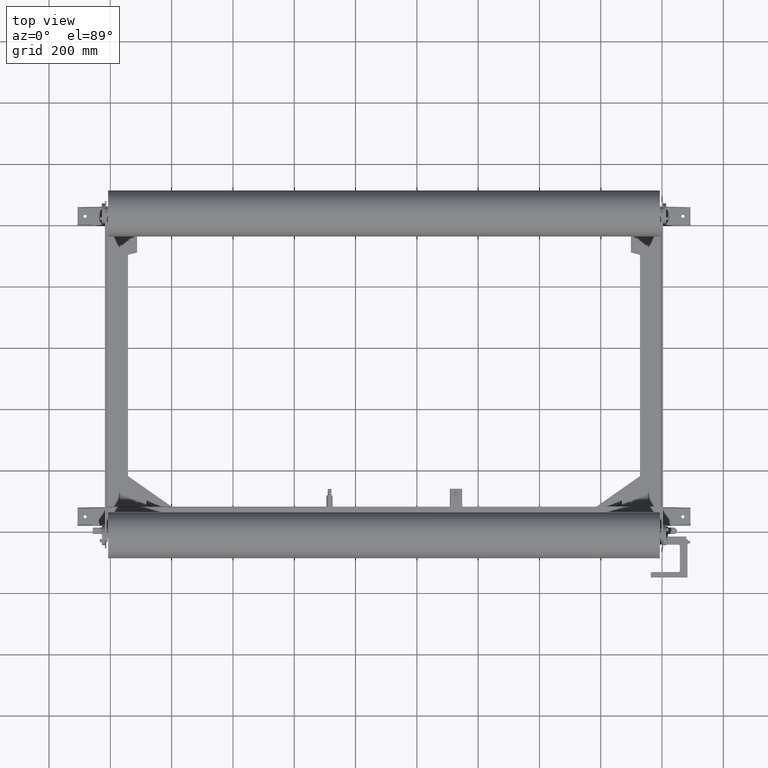
[diagram: clean part render]
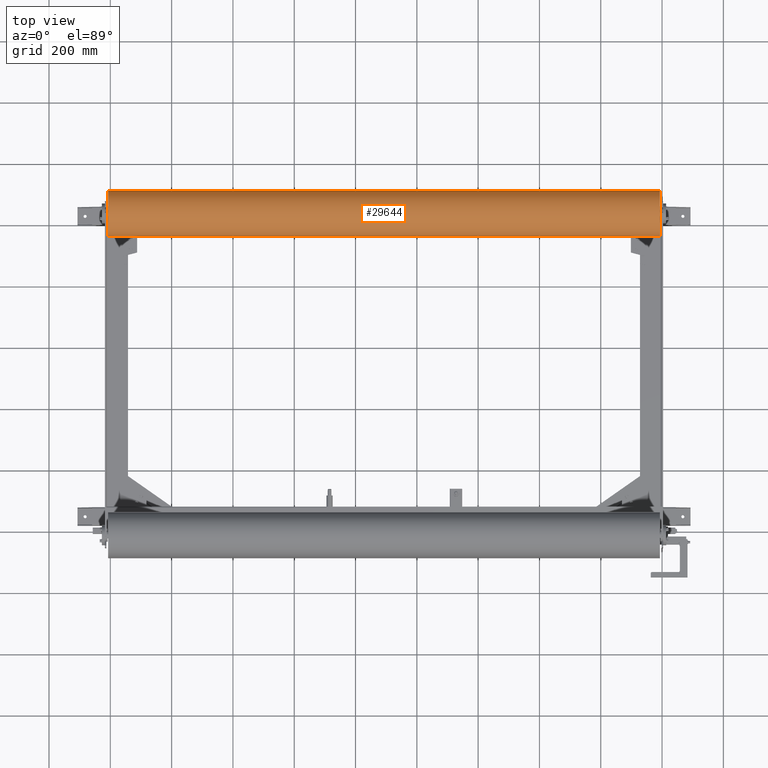
[diagram: same view with one face highlighted and labeled with its STEP entity id]
A machine part, top view. The second image highlights one B-rep face of the part: STEP entity #29644.
In plain terms, the highlighted cylindrical surface (edge-blend (fillet) strip) has radius 75 mm, axis along (1, -0, 0).
Its self-contained STEP definition (entity closure, byte-faithful):
#29564=CARTESIAN_POINT('',(1500.0,39.000000000000085,0.0));
#29565=VERTEX_POINT('',#29564);
#29566=CARTESIAN_POINT('',(-300.000000000000110,38.999999999999901,0.0));
#29567=VERTEX_POINT('',#29566);
#29568=CARTESIAN_POINT('',(1500.0,39.000000000000085,0.0));
#29569=DIRECTION('',(-1.0,0.0,0.0));
#29570=VECTOR('',#29569,1800.0);
#29571=LINE('',#29568,#29570);
#29572=EDGE_CURVE('',#29565,#29567,#29571,.T.);
#29574=CARTESIAN_POINT('',(1500.0,-110.999999999999830,-9.184851E-015));
#29575=VERTEX_POINT('',#29574);
#29583=CARTESIAN_POINT('',(-300.000000000000230,-110.999999999999830,-9.184851E-015));
#29584=VERTEX_POINT('',#29583);
#29585=CARTESIAN_POINT('',(1500.0,-110.999999999999830,-9.184851E-015));
#29586=DIRECTION('',(-1.0,0.0,0.0));
#29587=VECTOR('',#29586,1800.000000000000200);
#29588=LINE('',#29585,#29587);
#29589=EDGE_CURVE('',#29575,#29584,#29588,.T.);
#29606=CARTESIAN_POINT('',(-300.000000000000110,-35.999999999999915,0.0));
#29607=DIRECTION('',(1.0,0.0,0.0));
#29608=DIRECTION('',(0.0,1.0,0.0));
#29609=AXIS2_PLACEMENT_3D('',#29606,#29607,#29608);
#29610=CIRCLE('',#29609,74.999999999999815);
#29611=EDGE_CURVE('',#29567,#29584,#29610,.T.);
#29627=CARTESIAN_POINT('',(600.0,-35.999999999999915,0.0));
#29628=DIRECTION('',(1.0,0.0,0.0));
#29629=DIRECTION('',(0.0,1.0,0.0));
#29630=AXIS2_PLACEMENT_3D('',#29627,#29628,#29629);
#29631=CYLINDRICAL_SURFACE('',#29630,74.999999999999915);
#29632=ORIENTED_EDGE('',*,*,#29572,.T.);
#29633=ORIENTED_EDGE('',*,*,#29611,.T.);
#29634=ORIENTED_EDGE('',*,*,#29589,.F.);
#29635=CARTESIAN_POINT('',(1500.0,-35.999999999999915,0.0));
#29636=DIRECTION('',(1.0,0.0,0.0));
#29637=DIRECTION('',(0.0,1.0,0.0));
#29638=AXIS2_PLACEMENT_3D('',#29635,#29636,#29637);
#29639=CIRCLE('',#29638,75.0);
#29640=EDGE_CURVE('',#29565,#29575,#29639,.T.);
#29641=ORIENTED_EDGE('',*,*,#29640,.F.);
#29642=EDGE_LOOP('',(#29632,#29633,#29634,#29641));
#29643=FACE_OUTER_BOUND('',#29642,.T.);
#29644=ADVANCED_FACE('',(#29643),#29631,.T.);